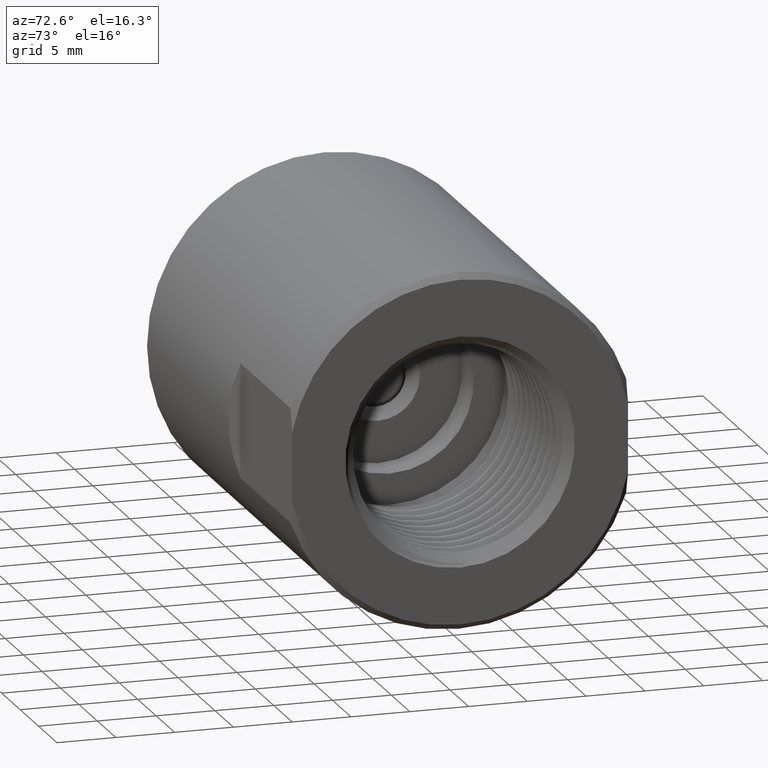
[diagram: clean part render]
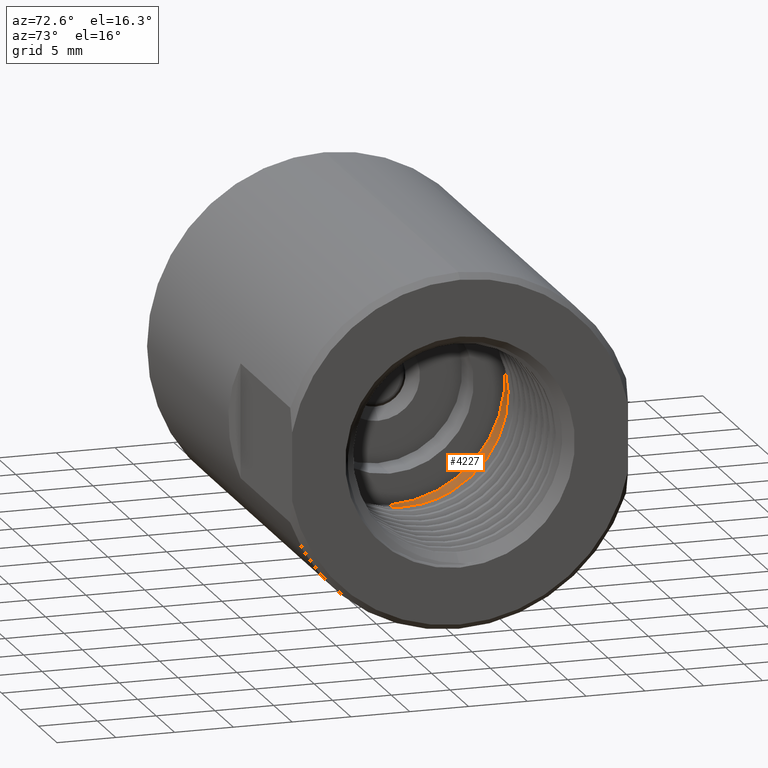
[diagram: same view with one face highlighted and labeled with its STEP entity id]
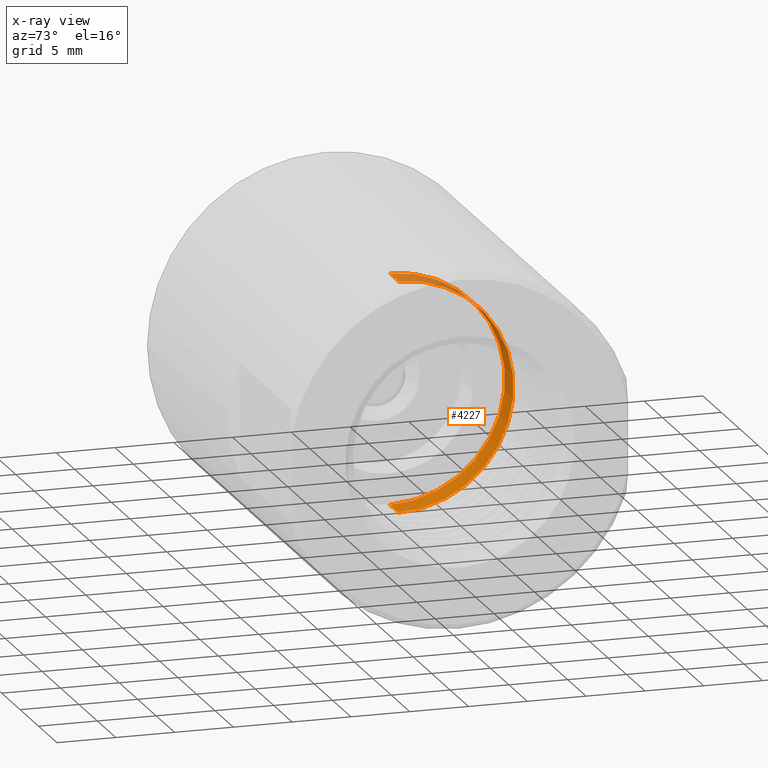
[diagram: x-ray of the same camera — body ghosted, the highlighted face saturated]
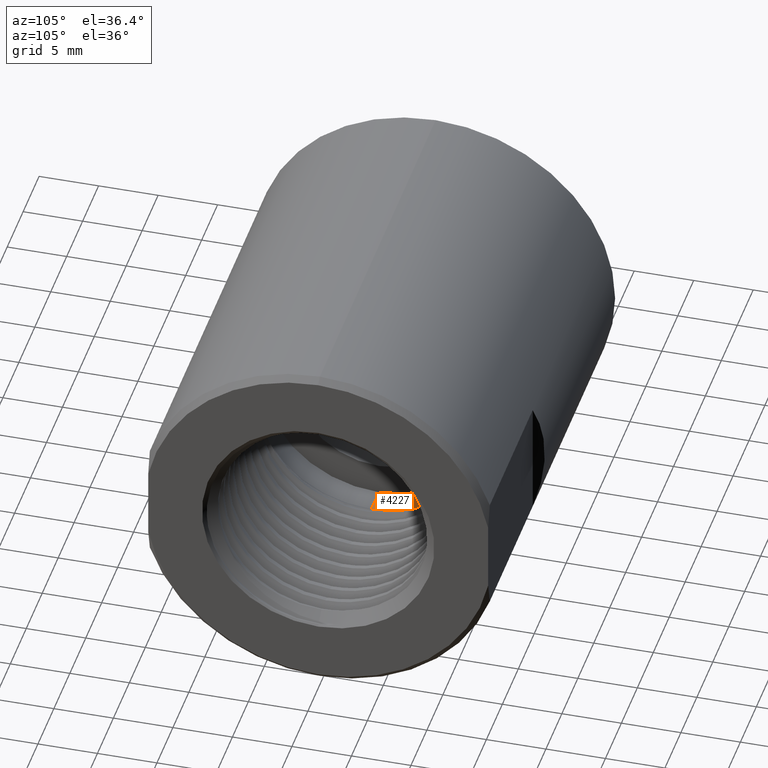
[diagram: same view with one face highlighted and labeled with its STEP entity id]
A machine part, auxiliary view. The second image highlights one B-rep face of the part: STEP entity #4227.
The next image is the same camera in x-ray: the body ghosted, the highlighted face saturated — about 21% of this face is hidden behind the body in this view.
A second angle (auxiliary view) of the same face is appended — the face is thin or edge-on in the first view.
In plain terms, the highlighted cylindrical surface (partial cylindrical patch) has radius 9.779 mm, axis along (-1, -0, -0).
Its self-contained STEP definition (entity closure, byte-faithful):
#63 = AXIS2_PLACEMENT_3D ( 'NONE', #11759, #2555, #9935 ) ;
#863 = CARTESIAN_POINT ( 'NONE',  ( 0.0000000000000000000, 0.0000000000000000000, 0.0000000000000000000 ) ) ;
#1913 = ORIENTED_EDGE ( 'NONE', *, *, #11546, .F. ) ;
#1987 = VERTEX_POINT ( 'NONE', #7794 ) ;
#2006 = CIRCLE ( 'NONE', #63, 0.3850000000000001199 ) ;
#2024 = DIRECTION ( 'NONE',  ( 0.0000000000000000000, 0.0000000000000000000, 1.000000000000000000 ) ) ;
#2396 = VECTOR ( 'NONE', #6385, 39.37007874015748143 ) ;
#2555 = DIRECTION ( 'NONE',  ( -1.000000000000000000, -0.0000000000000000000, -0.0000000000000000000 ) ) ;
#2733 = EDGE_CURVE ( 'NONE', #7329, #3177, #8500, .T. ) ;
#2942 = CYLINDRICAL_SURFACE ( 'NONE', #8063, 0.3850000000000001754 ) ;
#2996 = EDGE_CURVE ( 'NONE', #11986, #1987, #2006, .T. ) ;
#3177 = VERTEX_POINT ( 'NONE', #4860 ) ;
#3434 = DIRECTION ( 'NONE',  ( -1.000000000000000000, -0.0000000000000000000, -0.0000000000000000000 ) ) ;
#3441 = EDGE_CURVE ( 'NONE', #7329, #11986, #4508, .T. ) ;
#3627 = AXIS2_PLACEMENT_3D ( 'NONE', #3729, #7557, #10303 ) ;
#3729 = CARTESIAN_POINT ( 'NONE',  ( 0.5939999999999999725, 0.0000000000000000000, 0.0000000000000000000 ) ) ;
#4227 = ADVANCED_FACE ( 'NONE', ( #7571 ), #2942, .F. ) ;
#4376 = CARTESIAN_POINT ( 'NONE',  ( 0.5000000000000000000, 0.0000000000000000000, 0.3850000000000001199 ) ) ;
#4508 = LINE ( 'NONE', #6328, #2396 ) ;
#4860 = CARTESIAN_POINT ( 'NONE',  ( 0.5939999999999999725, 4.714890176717313582E-17, -0.3850000000000002864 ) ) ;
#4971 = ORIENTED_EDGE ( 'NONE', *, *, #2733, .F. ) ;
#6328 = CARTESIAN_POINT ( 'NONE',  ( 0.0000000000000000000, 0.0000000000000000000, 0.3850000000000001754 ) ) ;
#6385 = DIRECTION ( 'NONE',  ( -1.000000000000000000, -0.0000000000000000000, -0.0000000000000000000 ) ) ;
#6651 = DIRECTION ( 'NONE',  ( -1.000000000000000000, -0.0000000000000000000, -0.0000000000000000000 ) ) ;
#7329 = VERTEX_POINT ( 'NONE', #11456 ) ;
#7557 = DIRECTION ( 'NONE',  ( -1.000000000000000000, -0.0000000000000000000, -0.0000000000000000000 ) ) ;
#7571 = FACE_OUTER_BOUND ( 'NONE', #11450, .T. ) ;
#7794 = CARTESIAN_POINT ( 'NONE',  ( 0.5000000000000000000, 4.714890176717312350E-17, -0.3850000000000001199 ) ) ;
#8004 = LINE ( 'NONE', #9702, #10122 ) ;
#8063 = AXIS2_PLACEMENT_3D ( 'NONE', #863, #6651, #2024 ) ;
#8500 = CIRCLE ( 'NONE', #3627, 0.3850000000000002864 ) ;
#8763 = ORIENTED_EDGE ( 'NONE', *, *, #2996, .T. ) ;
#9151 = ORIENTED_EDGE ( 'NONE', *, *, #3441, .T. ) ;
#9702 = CARTESIAN_POINT ( 'NONE',  ( 0.0000000000000000000, 4.714890176717312350E-17, -0.3850000000000001754 ) ) ;
#9935 = DIRECTION ( 'NONE',  ( 0.0000000000000000000, 0.0000000000000000000, 1.000000000000000000 ) ) ;
#10122 = VECTOR ( 'NONE', #3434, 39.37007874015748143 ) ;
#10303 = DIRECTION ( 'NONE',  ( 0.0000000000000000000, 0.0000000000000000000, 1.000000000000000000 ) ) ;
#11450 = EDGE_LOOP ( 'NONE', ( #1913, #4971, #9151, #8763 ) ) ;
#11456 = CARTESIAN_POINT ( 'NONE',  ( 0.5939999999999999725, 0.0000000000000000000, 0.3850000000000002864 ) ) ;
#11546 = EDGE_CURVE ( 'NONE', #3177, #1987, #8004, .T. ) ;
#11759 = CARTESIAN_POINT ( 'NONE',  ( 0.5000000000000000000, 0.0000000000000000000, 0.0000000000000000000 ) ) ;
#11986 = VERTEX_POINT ( 'NONE', #4376 ) ;